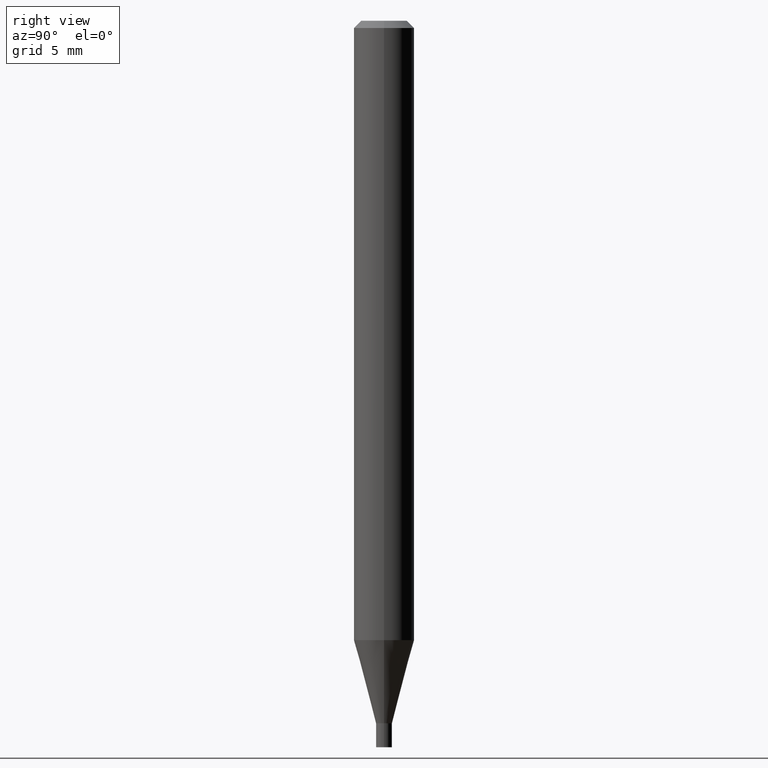
[diagram: clean part render]
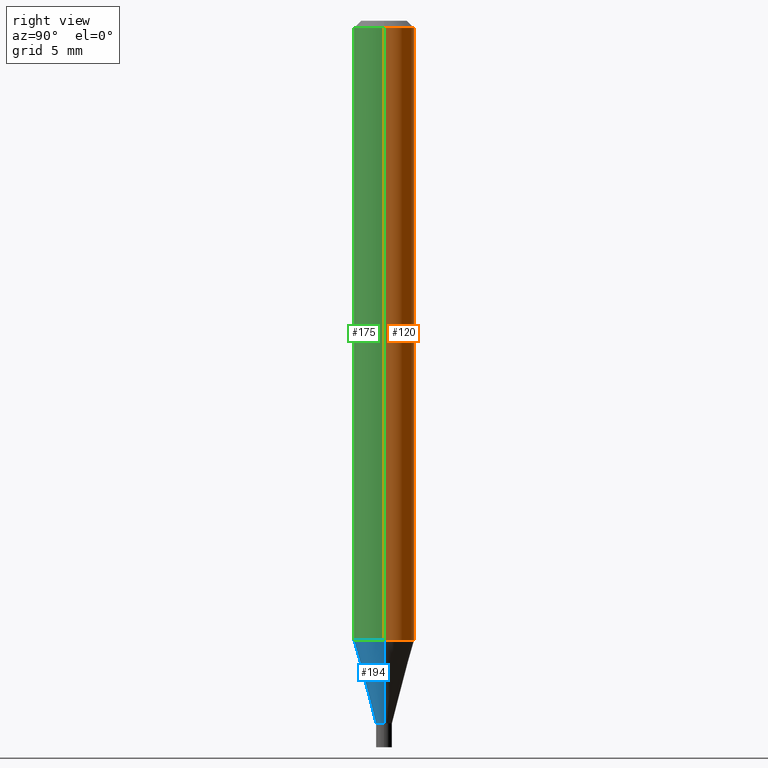
[diagram: same view with three faces highlighted in distinct colors, each labeled with its STEP entity id]
A machine part, right view with three faces highlighted in distinct colors.
Their STEP definitions:

[orange] entity #120 — the highlighted cylindrical surface (edge-blend (fillet) strip) has radius 1.5875 mm, axis along (-0, 0, 1).
#7 = CARTESIAN_POINT ( 'NONE',  ( 0.06250000000000000000, -4.364351673553916694E-16, 3.047610484872459871E-30 ) ) ;
#25 = VERTEX_POINT ( 'NONE', #43 ) ;
#29 = VERTEX_POINT ( 'NONE', #192 ) ;
#43 = CARTESIAN_POINT ( 'NONE',  ( -0.06250000000000000000, -4.020906727630820247E-15, -1.278825662851830858 ) ) ;
#89 = EDGE_CURVE ( 'NONE', #204, #25, #310, .T. ) ;
#92 = DIRECTION ( 'NONE',  ( 1.000000000000000000, -6.982962677686262766E-15, 0.000000000000000000 ) ) ;
#93 = ORIENTED_EDGE ( 'NONE', *, *, #270, .F. ) ;
#95 = FACE_OUTER_BOUND ( 'NONE', #441, .T. ) ;
#101 = CARTESIAN_POINT ( 'NONE',  ( 0.000000000000000000, 0.000000000000000000, 0.000000000000000000 ) ) ;
#112 = AXIS2_PLACEMENT_3D ( 'NONE', #163, #202, #92 ) ;
#120 = ADVANCED_FACE ( 'NONE', ( #95 ), #208, .T. ) ;
#137 = ORIENTED_EDGE ( 'NONE', *, *, #222, .T. ) ;
#141 = ORIENTED_EDGE ( 'NONE', *, *, #224, .F. ) ;
#158 = DIRECTION ( 'NONE',  ( -2.445468806185136597E-29, 3.491481338843145583E-15, 1.000000000000000000 ) ) ;
#162 = DIRECTION ( 'NONE',  ( -2.445468806185136877E-29, 3.491481338843145188E-15, 1.000000000000000000 ) ) ;
#163 = CARTESIAN_POINT ( 'NONE',  ( 3.127328267053182321E-29, -4.464995937480882863E-15, -1.278825662851830858 ) ) ;
#173 = VERTEX_POINT ( 'NONE', #338 ) ;
#192 = CARTESIAN_POINT ( 'NONE',  ( -0.06250000000000000000, -1.814594868931702552E-15, -0.01499999999999999944 ) ) ;
#202 = DIRECTION ( 'NONE',  ( -2.445468806185136597E-29, 3.491481338843145583E-15, 1.000000000000000000 ) ) ;
#204 = VERTEX_POINT ( 'NONE', #332 ) ;
#208 = CYLINDRICAL_SURFACE ( 'NONE', #353, 0.06250000000000000000 ) ;
#222 = EDGE_CURVE ( 'NONE', #25, #29, #408, .T. ) ;
#224 = EDGE_CURVE ( 'NONE', #173, #29, #269, .T. ) ;
#268 = DIRECTION ( 'NONE',  ( -2.445468806185136877E-29, 3.491481338843145188E-15, 1.000000000000000000 ) ) ;
#269 = CIRCLE ( 'NONE', #447, 0.06250000000000000000 ) ;
#270 = EDGE_CURVE ( 'NONE', #204, #173, #432, .T. ) ;
#310 = CIRCLE ( 'NONE', #112, 0.06250000000000000000 ) ;
#332 = CARTESIAN_POINT ( 'NONE',  ( 0.06250000000000000000, -4.901431104836274532E-15, -1.278825662851830858 ) ) ;
#338 = CARTESIAN_POINT ( 'NONE',  ( 0.06250000000000000000, -4.888073874380388472E-16, -0.01499999999999999944 ) ) ;
#345 = VECTOR ( 'NONE', #162, 39.37007874015748143 ) ;
#353 = AXIS2_PLACEMENT_3D ( 'NONE', #101, #454, #422 ) ;
#376 = CARTESIAN_POINT ( 'NONE',  ( -0.06250000000000000000, 4.440892098500626162E-16, -3.074334431409316114E-30 ) ) ;
#381 = DIRECTION ( 'NONE',  ( 1.000000000000000000, -6.982962677686266711E-15, 0.000000000000000000 ) ) ;
#384 = VECTOR ( 'NONE', #268, 39.37007874015748143 ) ;
#401 = CARTESIAN_POINT ( 'NONE',  ( 3.668203209277705088E-31, -5.237222008264718399E-17, -0.01499999999999999944 ) ) ;
#408 = LINE ( 'NONE', #376, #384 ) ;
#414 = ORIENTED_EDGE ( 'NONE', *, *, #89, .T. ) ;
#422 = DIRECTION ( 'NONE',  ( 1.000000000000000000, -6.982962677686266711E-15, 4.876176775795935793E-29 ) ) ;
#432 = LINE ( 'NONE', #7, #345 ) ;
#441 = EDGE_LOOP ( 'NONE', ( #414, #137, #141, #93 ) ) ;
#447 = AXIS2_PLACEMENT_3D ( 'NONE', #401, #158, #381 ) ;
#454 = DIRECTION ( 'NONE',  ( -2.445468806185136597E-29, 3.491481338843145583E-15, 1.000000000000000000 ) ) ;

[blue] entity #194 — the highlighted conical surface has half-angle 15 deg.
#1 = CARTESIAN_POINT ( 'NONE',  ( 3.127328267053182321E-29, -4.464995937480882863E-15, -1.278825662851830858 ) ) ;
#10 = DIRECTION ( 'NONE',  ( 1.000000000000000000, -6.982962677686273021E-15, 0.000000000000000000 ) ) ;
#12 = CARTESIAN_POINT ( 'NONE',  ( -0.01649999999999965383, -4.484030429111193904E-15, -1.450499999999999901 ) ) ;
#15 = EDGE_CURVE ( 'NONE', #90, #204, #81, .T. ) ;
#16 = CARTESIAN_POINT ( 'NONE',  ( -0.01649999999999965383, -4.947154130591568350E-15, -1.450499999999999901 ) ) ;
#20 = ORIENTED_EDGE ( 'NONE', *, *, #388, .F. ) ;
#25 = VERTEX_POINT ( 'NONE', #43 ) ;
#41 = CARTESIAN_POINT ( 'NONE',  ( 0.01649999999999965383, -5.179612566173803826E-15, -1.450499999999999901 ) ) ;
#42 = FACE_OUTER_BOUND ( 'NONE', #236, .T. ) ;
#43 = CARTESIAN_POINT ( 'NONE',  ( -0.06250000000000000000, -4.020906727630820247E-15, -1.278825662851830858 ) ) ;
#81 = LINE ( 'NONE', #41, #107 ) ;
#85 = DIRECTION ( 'NONE',  ( 1.000000000000000000, -6.982962677686262766E-15, 0.000000000000000000 ) ) ;
#90 = VERTEX_POINT ( 'NONE', #343 ) ;
#107 = VECTOR ( 'NONE', #117, 39.37007874015747433 ) ;
#108 = VERTEX_POINT ( 'NONE', #12 ) ;
#117 = DIRECTION ( 'NONE',  ( 0.2588190451025213501, 1.565188264969621968E-15, 0.9659258262890682012 ) ) ;
#138 = ORIENTED_EDGE ( 'NONE', *, *, #261, .F. ) ;
#144 = CARTESIAN_POINT ( 'NONE',  ( 3.547152503371540530E-29, -5.064393681991982224E-15, -1.450499999999999901 ) ) ;
#154 = CIRCLE ( 'NONE', #256, 0.06250000000000000000 ) ;
#161 = AXIS2_PLACEMENT_3D ( 'NONE', #200, #264, #10 ) ;
#194 = ADVANCED_FACE ( 'NONE', ( #42 ), #195, .T. ) ;
#195 = CONICAL_SURFACE ( 'NONE', #161, 0.01649999999999965383, 0.2617993877991500740 ) ;
#200 = CARTESIAN_POINT ( 'NONE',  ( 3.547152503371540530E-29, -5.064393681991982224E-15, -1.450499999999999901 ) ) ;
#204 = VERTEX_POINT ( 'NONE', #332 ) ;
#209 = DIRECTION ( 'NONE',  ( 1.000000000000000000, -6.982962677686273021E-15, 0.000000000000000000 ) ) ;
#215 = LINE ( 'NONE', #16, #220 ) ;
#220 = VECTOR ( 'NONE', #349, 39.37007874015747433 ) ;
#236 = EDGE_LOOP ( 'NONE', ( #20, #328, #344, #138 ) ) ;
#239 = DIRECTION ( 'NONE',  ( -2.445468806185136597E-29, 3.491481338843145583E-15, 1.000000000000000000 ) ) ;
#256 = AXIS2_PLACEMENT_3D ( 'NONE', #1, #374, #85 ) ;
#261 = EDGE_CURVE ( 'NONE', #25, #204, #154, .T. ) ;
#264 = DIRECTION ( 'NONE',  ( -2.445468806185136597E-29, 3.491481338843145583E-15, 1.000000000000000000 ) ) ;
#328 = ORIENTED_EDGE ( 'NONE', *, *, #399, .T. ) ;
#332 = CARTESIAN_POINT ( 'NONE',  ( 0.06250000000000000000, -4.901431104836274532E-15, -1.278825662851830858 ) ) ;
#343 = CARTESIAN_POINT ( 'NONE',  ( 0.01649999999999965383, -5.179612566173803826E-15, -1.450499999999999901 ) ) ;
#344 = ORIENTED_EDGE ( 'NONE', *, *, #15, .T. ) ;
#349 = DIRECTION ( 'NONE',  ( -0.2588190451025213501, 5.211531920934551042E-15, 0.9659258262890682012 ) ) ;
#365 = AXIS2_PLACEMENT_3D ( 'NONE', #144, #239, #209 ) ;
#374 = DIRECTION ( 'NONE',  ( -2.445468806185136597E-29, 3.491481338843145583E-15, 1.000000000000000000 ) ) ;
#388 = EDGE_CURVE ( 'NONE', #108, #25, #215, .T. ) ;
#399 = EDGE_CURVE ( 'NONE', #108, #90, #431, .T. ) ;
#431 = CIRCLE ( 'NONE', #365, 0.01649999999999965383 ) ;

[green] entity #175 — the highlighted cylindrical surface (edge-blend (fillet) strip) has radius 1.5875 mm, axis along (-0, 0, 1).
#1 = CARTESIAN_POINT ( 'NONE',  ( 3.127328267053182321E-29, -4.464995937480882863E-15, -1.278825662851830858 ) ) ;
#3 = FACE_OUTER_BOUND ( 'NONE', #309, .T. ) ;
#7 = CARTESIAN_POINT ( 'NONE',  ( 0.06250000000000000000, -4.364351673553916694E-16, 3.047610484872459871E-30 ) ) ;
#8 = DIRECTION ( 'NONE',  ( 1.000000000000000000, -6.982962677686266711E-15, 0.000000000000000000 ) ) ;
#25 = VERTEX_POINT ( 'NONE', #43 ) ;
#29 = VERTEX_POINT ( 'NONE', #192 ) ;
#43 = CARTESIAN_POINT ( 'NONE',  ( -0.06250000000000000000, -4.020906727630820247E-15, -1.278825662851830858 ) ) ;
#49 = EDGE_CURVE ( 'NONE', #29, #173, #84, .T. ) ;
#50 = CYLINDRICAL_SURFACE ( 'NONE', #462, 0.06250000000000000000 ) ;
#59 = DIRECTION ( 'NONE',  ( -2.445468806185136597E-29, 3.491481338843145583E-15, 1.000000000000000000 ) ) ;
#84 = CIRCLE ( 'NONE', #318, 0.06250000000000000000 ) ;
#85 = DIRECTION ( 'NONE',  ( 1.000000000000000000, -6.982962677686262766E-15, 0.000000000000000000 ) ) ;
#103 = ORIENTED_EDGE ( 'NONE', *, *, #261, .T. ) ;
#133 = ORIENTED_EDGE ( 'NONE', *, *, #49, .F. ) ;
#154 = CIRCLE ( 'NONE', #256, 0.06250000000000000000 ) ;
#162 = DIRECTION ( 'NONE',  ( -2.445468806185136877E-29, 3.491481338843145188E-15, 1.000000000000000000 ) ) ;
#173 = VERTEX_POINT ( 'NONE', #338 ) ;
#175 = ADVANCED_FACE ( 'NONE', ( #3 ), #50, .T. ) ;
#192 = CARTESIAN_POINT ( 'NONE',  ( -0.06250000000000000000, -1.814594868931702552E-15, -0.01499999999999999944 ) ) ;
#204 = VERTEX_POINT ( 'NONE', #332 ) ;
#222 = EDGE_CURVE ( 'NONE', #25, #29, #408, .T. ) ;
#228 = DIRECTION ( 'NONE',  ( -2.445468806185136597E-29, 3.491481338843145583E-15, 1.000000000000000000 ) ) ;
#229 = CARTESIAN_POINT ( 'NONE',  ( 0.000000000000000000, 0.000000000000000000, 0.000000000000000000 ) ) ;
#233 = CARTESIAN_POINT ( 'NONE',  ( 3.668203209277705088E-31, -5.237222008264718399E-17, -0.01499999999999999944 ) ) ;
#256 = AXIS2_PLACEMENT_3D ( 'NONE', #1, #374, #85 ) ;
#261 = EDGE_CURVE ( 'NONE', #25, #204, #154, .T. ) ;
#268 = DIRECTION ( 'NONE',  ( -2.445468806185136877E-29, 3.491481338843145188E-15, 1.000000000000000000 ) ) ;
#270 = EDGE_CURVE ( 'NONE', #204, #173, #432, .T. ) ;
#293 = DIRECTION ( 'NONE',  ( 1.000000000000000000, -6.982962677686266711E-15, 4.876176775795935793E-29 ) ) ;
#309 = EDGE_LOOP ( 'NONE', ( #392, #103, #367, #133 ) ) ;
#318 = AXIS2_PLACEMENT_3D ( 'NONE', #233, #59, #8 ) ;
#332 = CARTESIAN_POINT ( 'NONE',  ( 0.06250000000000000000, -4.901431104836274532E-15, -1.278825662851830858 ) ) ;
#338 = CARTESIAN_POINT ( 'NONE',  ( 0.06250000000000000000, -4.888073874380388472E-16, -0.01499999999999999944 ) ) ;
#345 = VECTOR ( 'NONE', #162, 39.37007874015748143 ) ;
#367 = ORIENTED_EDGE ( 'NONE', *, *, #270, .T. ) ;
#374 = DIRECTION ( 'NONE',  ( -2.445468806185136597E-29, 3.491481338843145583E-15, 1.000000000000000000 ) ) ;
#376 = CARTESIAN_POINT ( 'NONE',  ( -0.06250000000000000000, 4.440892098500626162E-16, -3.074334431409316114E-30 ) ) ;
#384 = VECTOR ( 'NONE', #268, 39.37007874015748143 ) ;
#392 = ORIENTED_EDGE ( 'NONE', *, *, #222, .F. ) ;
#408 = LINE ( 'NONE', #376, #384 ) ;
#432 = LINE ( 'NONE', #7, #345 ) ;
#462 = AXIS2_PLACEMENT_3D ( 'NONE', #229, #228, #293 ) ;